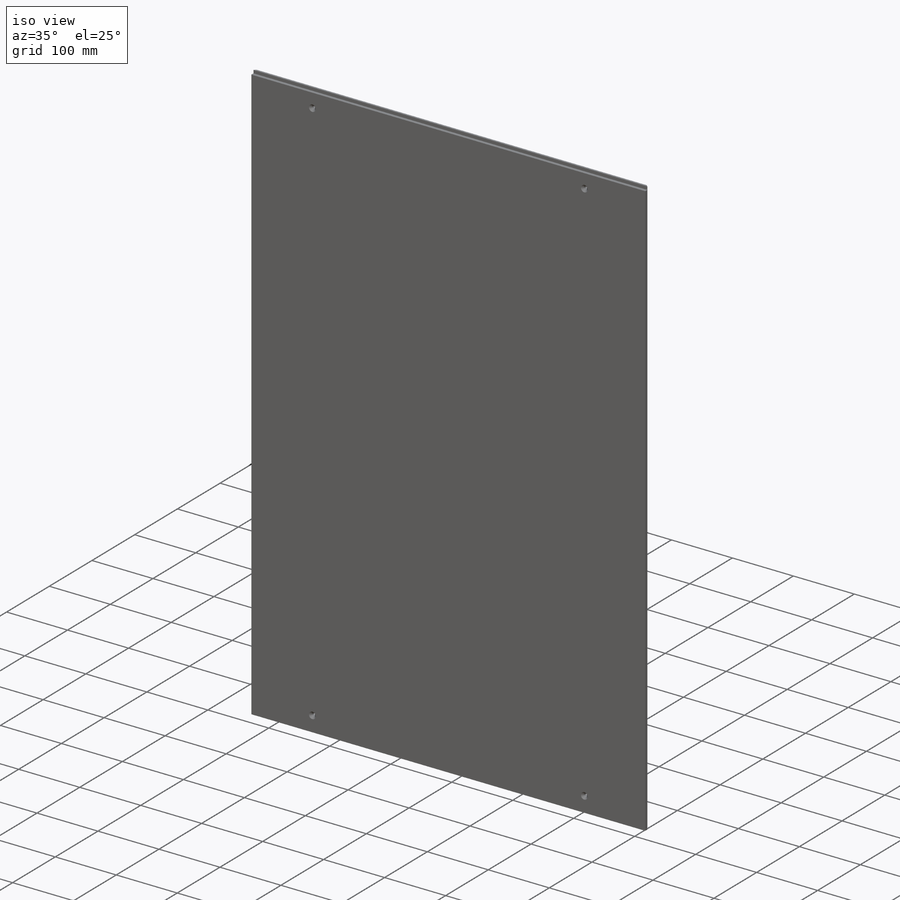
[diagram: iso view]
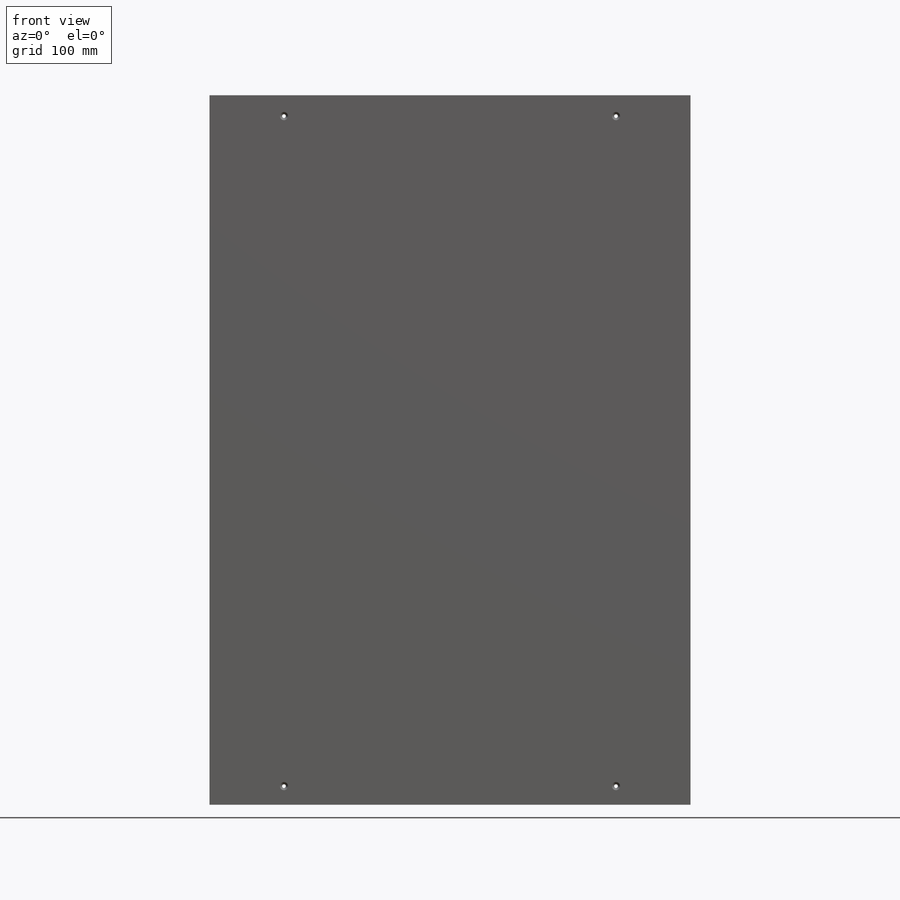
[diagram: front view]
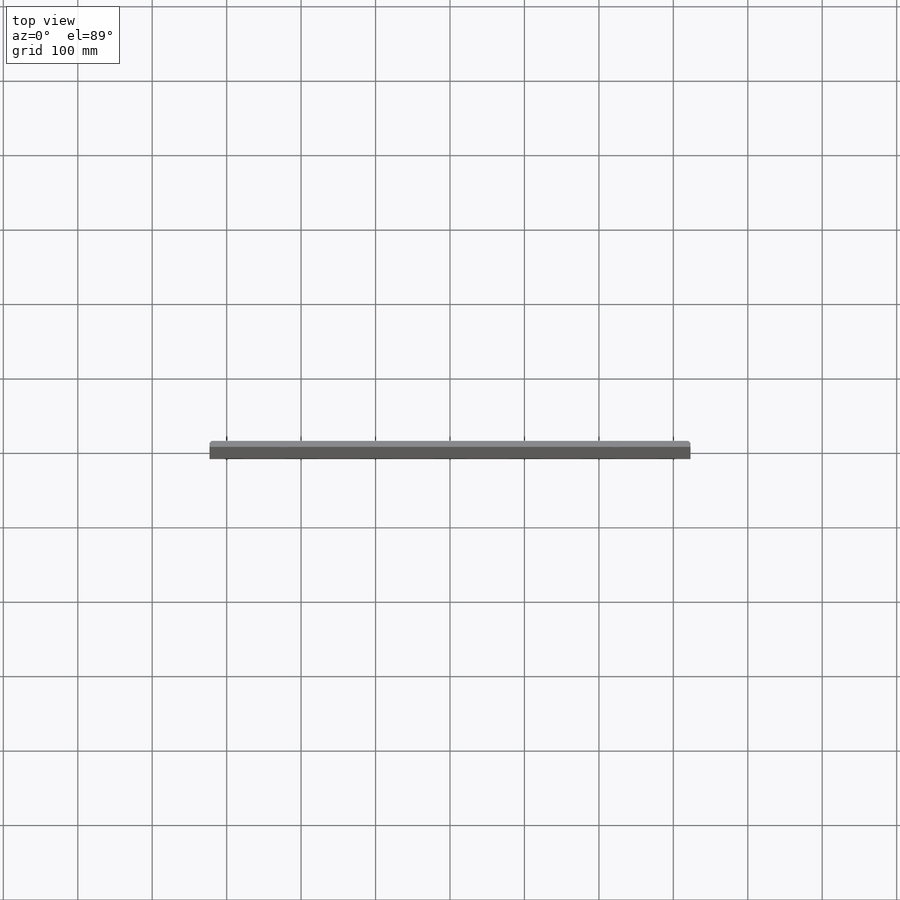
[diagram: top view]
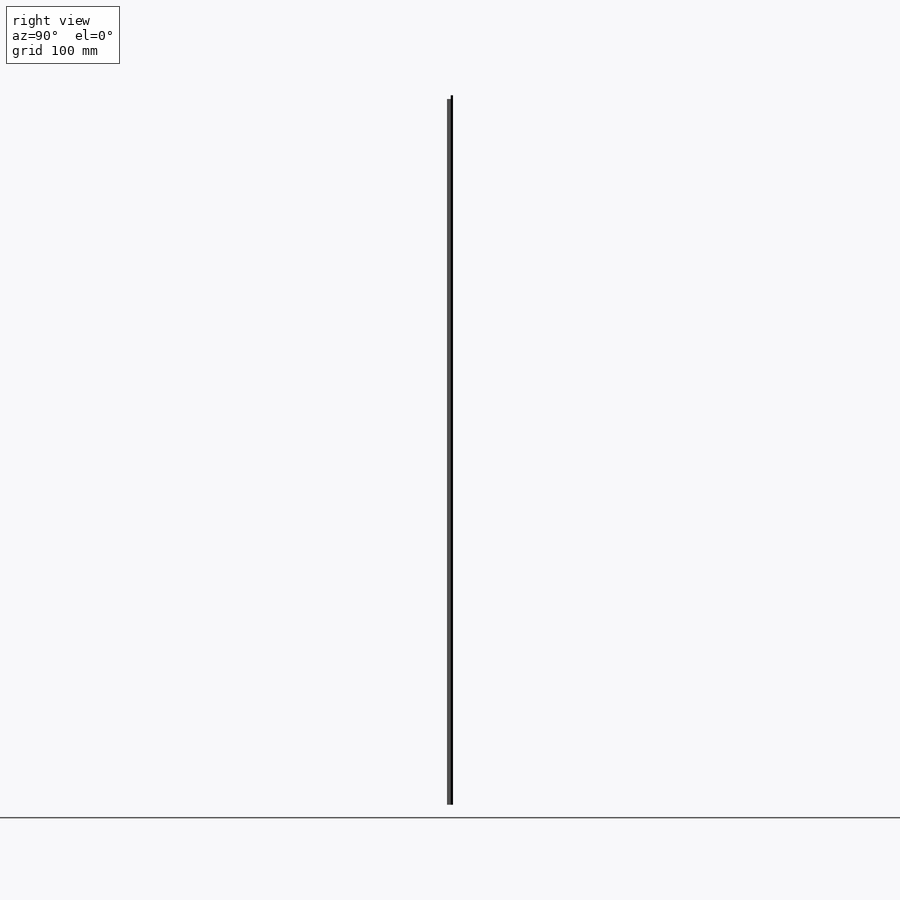
[diagram: right view]
SOLIDWORKS PART (.sldprt)
format: sldprt  version: not decoded by parser v0  size: 778,752 bytes
history: native  units: mm
features: sketch x3, chamfer x2, cut_extrude x2, material x1, extrude x1 + 1 further entry (+12 scaffold rows collapsed)
feature tree (22):
  scaffold x12  (default folders/planes/origin — collapsed)
  material  "Material <not specified>"
  "Design Table"
  sketch  "Sketch1"  dims[Largura=346.0mm Altura=653.0mm]
  extrude  "Boss-Extrude1"  Depth=8mm
  chamfer  "Chamfer1"  Distance=3mm Angle=45deg
  sketch  "Sketch3"  dims[c1.D5=5.0mm c1.D1=100.0mm c1.D2=100.0mm c1.D3=28.0mm c1.D4=25.0mm c2.D3=28.0mm]
  cut_extrude  "Cut-Extrude2"  [1 undecoded]
  chamfer  "Chamfer2"  Distance=3mm Angle=45deg
  sketch  "Sketch2"  dims[D1=5.0mm]
  cut_extrude  "Cut-Extrude3"  Depth=5mm
decode coverage: 7 of 8 modeling features carry decoded parameters; 1 rows unclassified (native names shown)
note: 1 parameter value undecoded
note: suppression state not decoded; provenance and decode notes live in map.json
